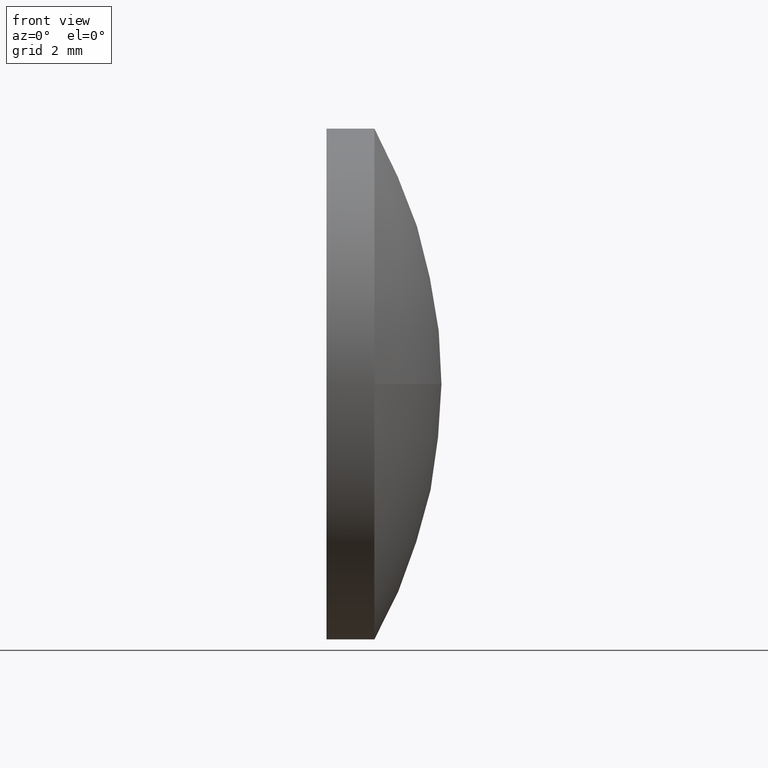
[diagram: clean part render]
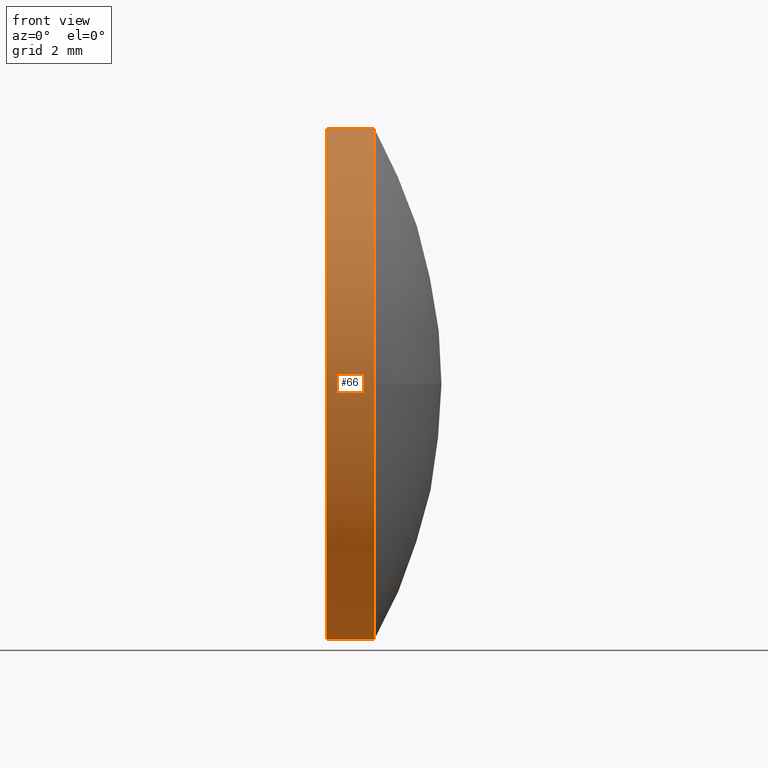
[diagram: same view with one face highlighted and labeled with its STEP entity id]
A machine part, front view. The second image highlights one B-rep face of the part: STEP entity #66.
In plain terms, the highlighted cylindrical surface (partial cylindrical patch) has radius 8 mm, axis along (-1, -0, -0).
Its self-contained STEP definition (entity closure, byte-faithful):
#7 = VERTEX_POINT ( 'NONE', #69 ) ;
#9 = ORIENTED_EDGE ( 'NONE', *, *, #143, .F. ) ;
#13 = DIRECTION ( 'NONE',  ( -1.000000000000000000, -0.0000000000000000000, -0.0000000000000000000 ) ) ;
#15 = CIRCLE ( 'NONE', #97, 7.999999999999992900 ) ;
#17 = CYLINDRICAL_SURFACE ( 'NONE', #140, 7.999999999999992900 ) ;
#18 = VECTOR ( 'NONE', #87, 1000.000000000000000 ) ;
#20 = VERTEX_POINT ( 'NONE', #57 ) ;
#36 = VERTEX_POINT ( 'NONE', #180 ) ;
#42 = VERTEX_POINT ( 'NONE', #151 ) ;
#43 = EDGE_CURVE ( 'NONE', #79, #7, #99, .T. ) ;
#46 = ORIENTED_EDGE ( 'NONE', *, *, #152, .T. ) ;
#52 = ORIENTED_EDGE ( 'NONE', *, *, #43, .T. ) ;
#53 = EDGE_CURVE ( 'NONE', #42, #7, #156, .T. ) ;
#55 = LINE ( 'NONE', #109, #76 ) ;
#57 = CARTESIAN_POINT ( 'NONE',  ( 486.9010122336356400, -76.31670347196424600, -7.999999999999992900 ) ) ;
#60 = CARTESIAN_POINT ( 'NONE',  ( 486.9010122336356400, -76.31670347196424600, 0.0000000000000000000 ) ) ;
#61 = CARTESIAN_POINT ( 'NONE',  ( 486.9010122336356400, -76.31670347196424600, 0.0000000000000000000 ) ) ;
#62 = DIRECTION ( 'NONE',  ( 0.0000000000000000000, 0.0000000000000000000, 1.000000000000000000 ) ) ;
#66 = ADVANCED_FACE ( 'NONE', ( #98 ), #17, .T. ) ;
#69 = CARTESIAN_POINT ( 'NONE',  ( 485.4010122336356400, -76.31670347196424600, 7.999999999999992900 ) ) ;
#71 = DIRECTION ( 'NONE',  ( -1.000000000000000000, -0.0000000000000000000, -0.0000000000000000000 ) ) ;
#76 = VECTOR ( 'NONE', #130, 1000.000000000000000 ) ;
#79 = VERTEX_POINT ( 'NONE', #92 ) ;
#87 = DIRECTION ( 'NONE',  ( -1.000000000000000000, -0.0000000000000000000, -0.0000000000000000000 ) ) ;
#88 = DIRECTION ( 'NONE',  ( -1.000000000000000000, -0.0000000000000000000, -0.0000000000000000000 ) ) ;
#92 = CARTESIAN_POINT ( 'NONE',  ( 486.9010122336356400, -76.31670347196424600, 7.999999999999992900 ) ) ;
#97 = AXIS2_PLACEMENT_3D ( 'NONE', #61, #13, #118 ) ;
#98 = FACE_OUTER_BOUND ( 'NONE', #138, .T. ) ;
#99 = LINE ( 'NONE', #126, #18 ) ;
#103 = CARTESIAN_POINT ( 'NONE',  ( 485.4010122336356400, -76.31670347196424600, 0.0000000000000000000 ) ) ;
#106 = DIRECTION ( 'NONE',  ( 0.0000000000000000000, 0.0000000000000000000, 1.000000000000000000 ) ) ;
#109 = CARTESIAN_POINT ( 'NONE',  ( 483.7530397606441300, -76.31670347196424600, -7.999999999999992900 ) ) ;
#112 = AXIS2_PLACEMENT_3D ( 'NONE', #60, #71, #106 ) ;
#118 = DIRECTION ( 'NONE',  ( 0.0000000000000000000, 0.0000000000000000000, 1.000000000000000000 ) ) ;
#120 = DIRECTION ( 'NONE',  ( 0.0000000000000000000, 0.0000000000000000000, 1.000000000000000000 ) ) ;
#125 = AXIS2_PLACEMENT_3D ( 'NONE', #103, #139, #62 ) ;
#126 = CARTESIAN_POINT ( 'NONE',  ( 483.7530397606441300, -76.31670347196424600, 7.999999999999992900 ) ) ;
#130 = DIRECTION ( 'NONE',  ( -1.000000000000000000, -0.0000000000000000000, -0.0000000000000000000 ) ) ;
#136 = CIRCLE ( 'NONE', #112, 7.999999999999992900 ) ;
#138 = EDGE_LOOP ( 'NONE', ( #9, #173, #46, #52, #181 ) ) ;
#139 = DIRECTION ( 'NONE',  ( -1.000000000000000000, -0.0000000000000000000, -0.0000000000000000000 ) ) ;
#140 = AXIS2_PLACEMENT_3D ( 'NONE', #164, #88, #120 ) ;
#143 = EDGE_CURVE ( 'NONE', #20, #42, #55, .T. ) ;
#151 = CARTESIAN_POINT ( 'NONE',  ( 485.4010122336356400, -76.31670347196424600, -7.999999999999992900 ) ) ;
#152 = EDGE_CURVE ( 'NONE', #36, #79, #15, .T. ) ;
#156 = CIRCLE ( 'NONE', #125, 7.999999999999992900 ) ;
#164 = CARTESIAN_POINT ( 'NONE',  ( 483.7530397606441300, -76.31670347196424600, 0.0000000000000000000 ) ) ;
#165 = EDGE_CURVE ( 'NONE', #20, #36, #136, .T. ) ;
#173 = ORIENTED_EDGE ( 'NONE', *, *, #165, .T. ) ;
#180 = CARTESIAN_POINT ( 'NONE',  ( 486.9010122336356400, -84.31670347196426000, -9.797174393178809900E-016 ) ) ;
#181 = ORIENTED_EDGE ( 'NONE', *, *, #53, .F. ) ;